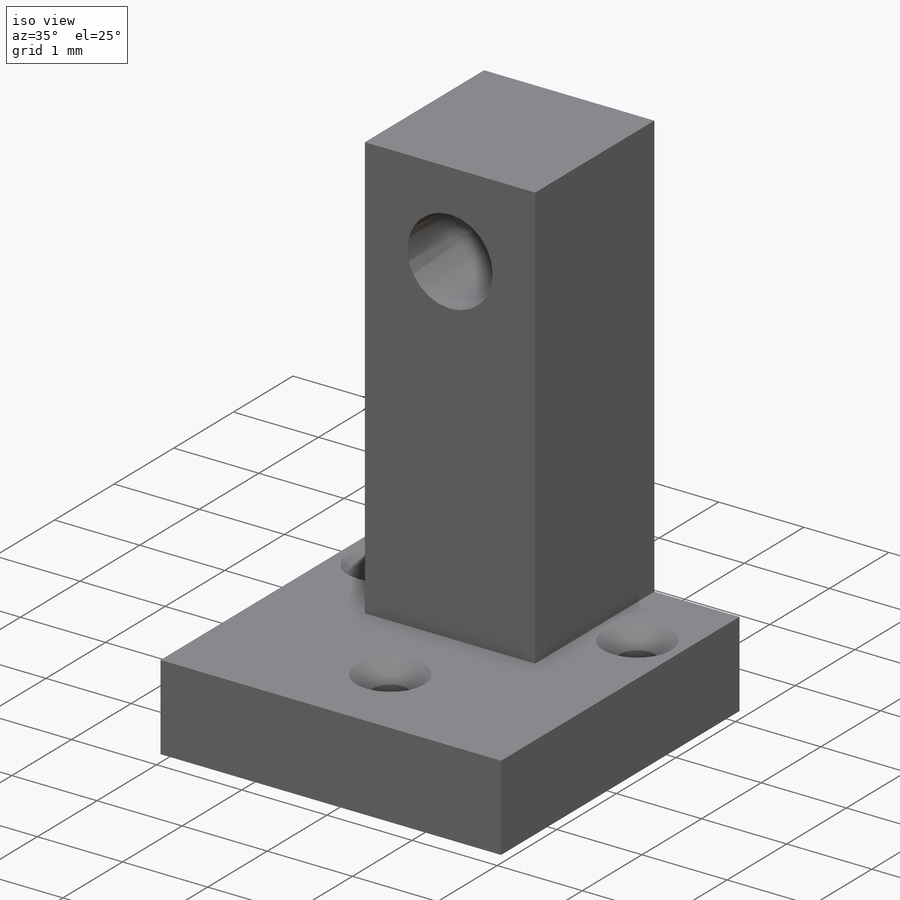
[diagram: iso view]
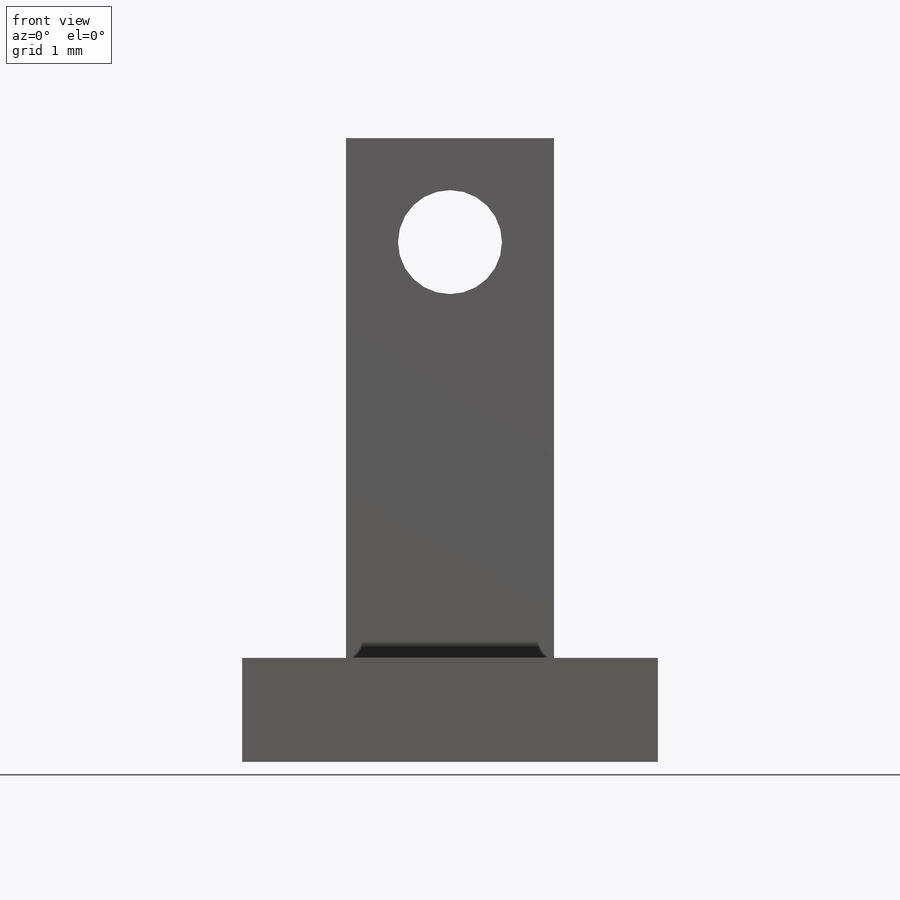
[diagram: front view]
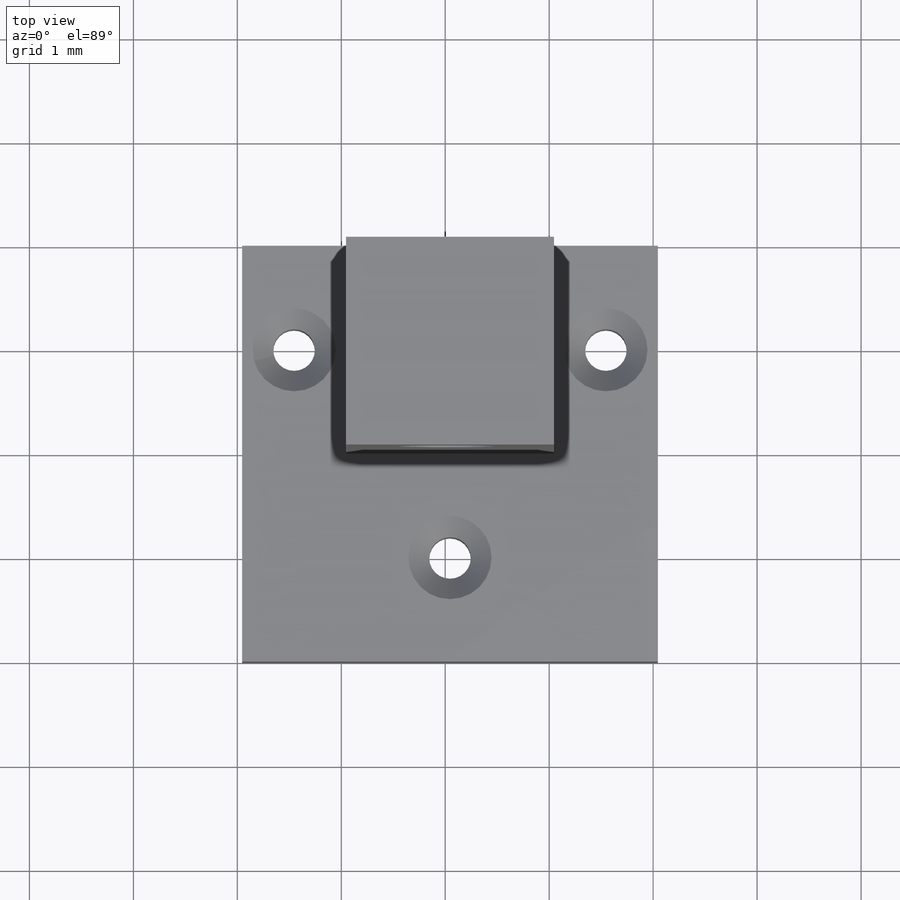
[diagram: top view]
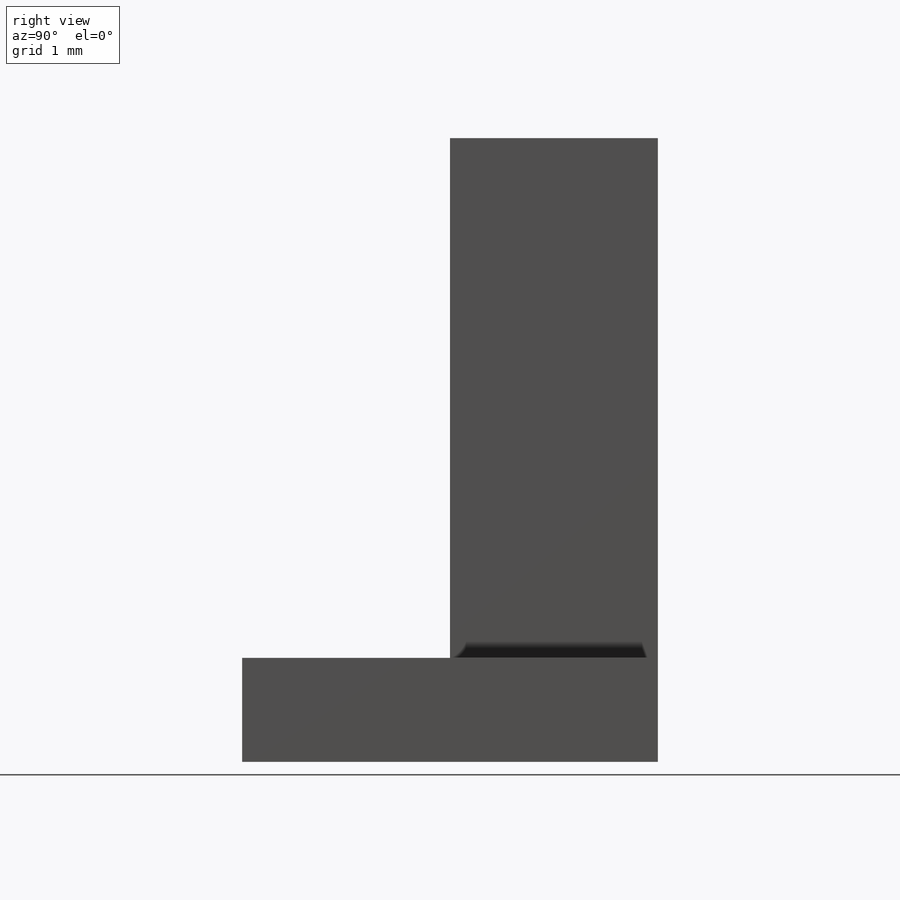
[diagram: right view]
SOLIDWORKS PART (.sldprt)
format: sldprt  version: not decoded by parser v0  size: 224,256 bytes
history: native  units: mm
features: sketch x5, plane x3, cut_extrude x3, chamfer x3, extrude x2, material x1 (+10 scaffold rows collapsed)
feature tree (27):
  scaffold x10  (default folders/planes/origin — collapsed)
  material  "Matériau <non spécifié>"
  plane  "Plan de face"
  plane  "Plan de dessus"
  plane  "Plan de droite"
  sketch  "Esquisse1"  dims[D1=5.0mm D2=1.0mm D3=1.0mm D4=1.0mm D5=2.0mm D6=1.0mm]
  extrude  "Boss.-Extru.2"  Depth=2mm
  sketch  "Esquisse3"
  extrude  "Boss.-Extru.3"  Depth=2mm
  sketch  "Esquisse4"  dims[D1=1.0mm D2=1.0mm D3=1.0mm]
  cut_extrude  "Enlèv. mat.-Extru.1"  Depth=2mm
  sketch  "Esquisse5"  dims[D1=0.4mm D2=1.0mm D3=1.0mm]
  cut_extrude  "Enlèv. mat.-Extru.2"  Depth=1mm
  sketch  "Esquisse6"  dims[D1=0.4mm D2=0.4mm D3=0.4mm D4=1.0mm D5=0.5mm D6=1.0mm D7=0.5mm D8=1.0mm D9=2.0mm]
  cut_extrude  "Enlèv. mat.-Extru.3"  Depth=1mm
  chamfer  "Chanfrein1"  Distance=0.2mm Angle=45deg
  chamfer  "Chanfrein2"  Distance=0.2mm Angle=45deg
  chamfer  "Chanfrein3"  Distance=0.2mm Angle=45deg
decode coverage: 12 of 13 modeling features carry decoded parameters
note: suppression state not decoded; provenance and decode notes live in map.json
